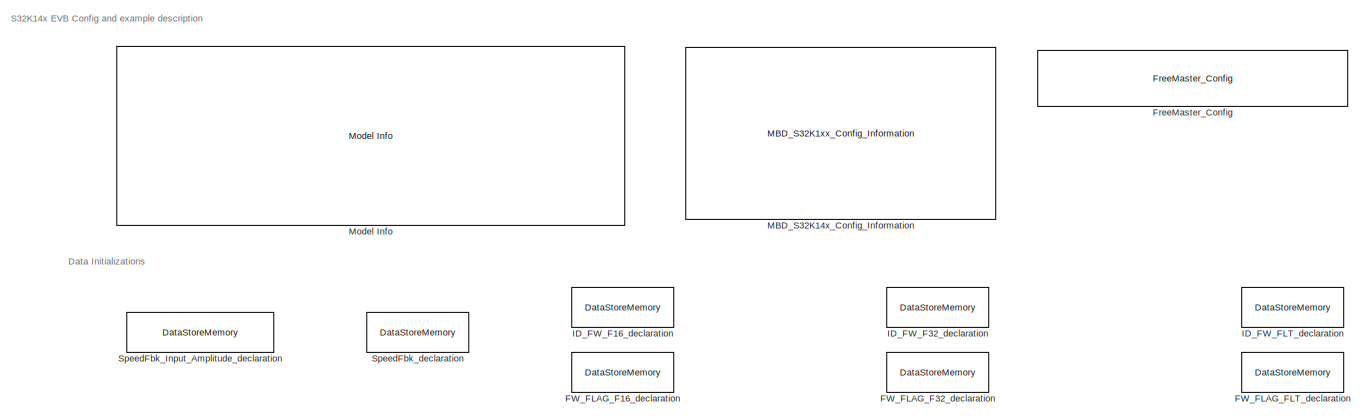
[diagram: root canvas - part 1/6, top center region]
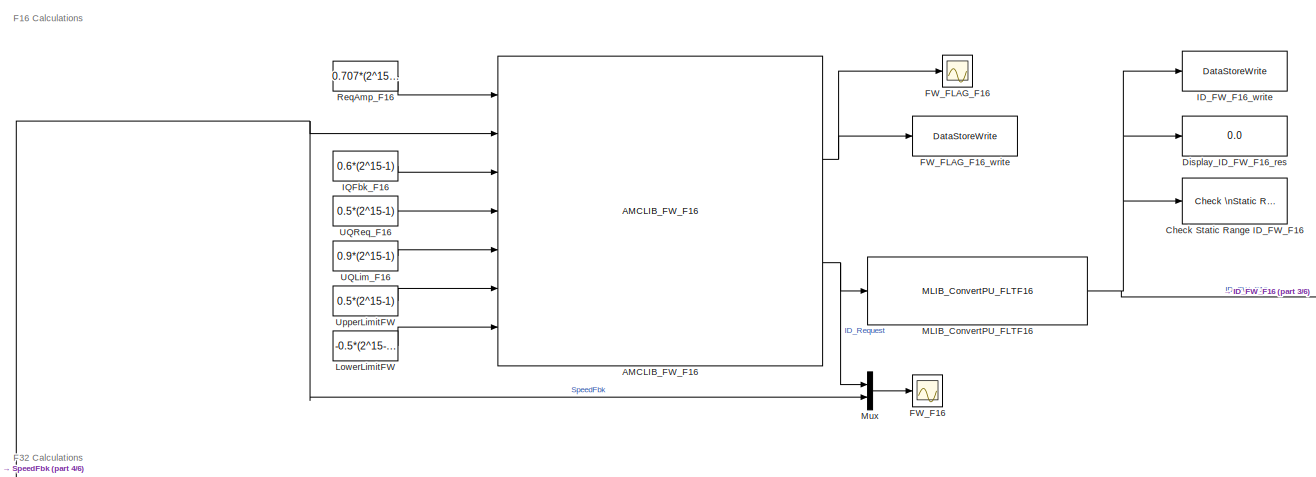
[diagram: root canvas - part 2/6, central region]
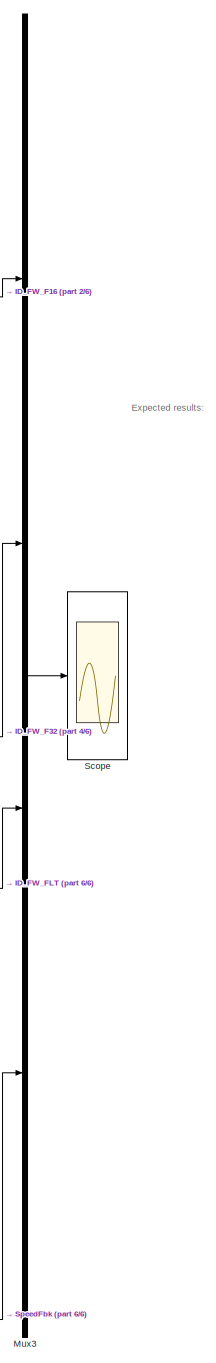
[diagram: root canvas - part 3/6, right side, full height]
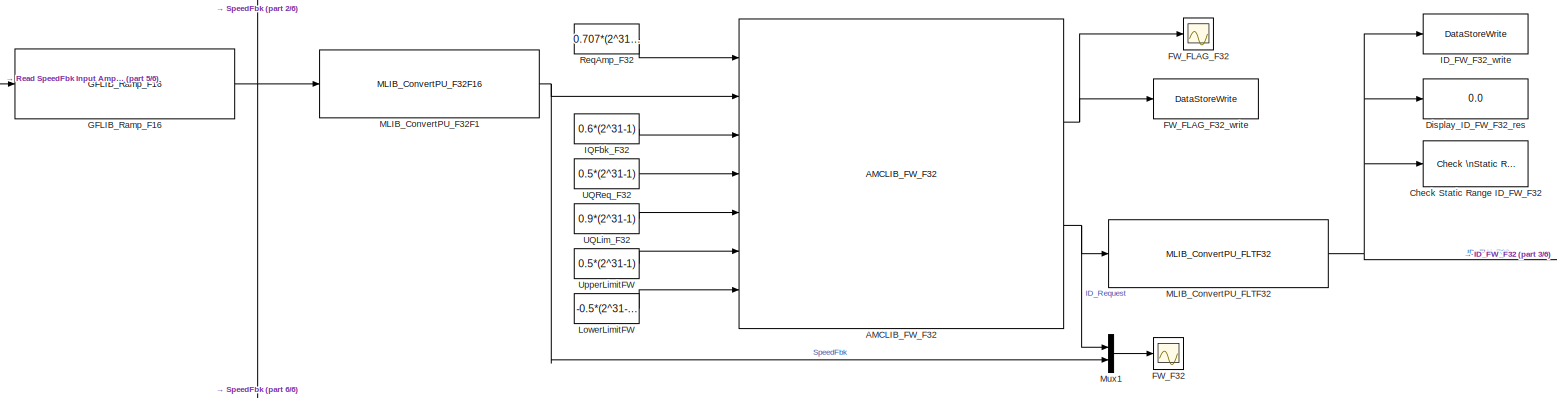
[diagram: root canvas - part 4/6, full width, middle band]
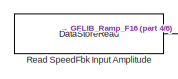
[diagram: root canvas - part 5/6, middle left region]
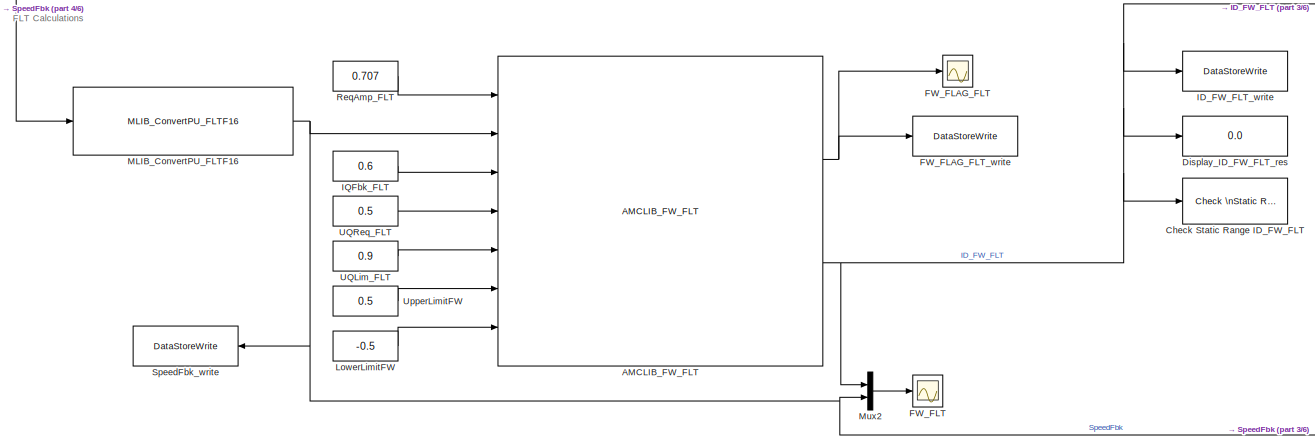
[diagram: root canvas - part 6/6, bottom center region]
MODEL ammclib_amclib_field_weakening_s32k14x
KIND model
CONFIG InitFcn = mbd_s32k_consistency_checks(bdroot(gcs));
BLOCK [Reference] AMCLIB_FW_F16  REF=ammclib_bam_s32k14x/AMCLIB/bam_f16/AMCLIB_FW_F16  (lib defined in mdl_f341c9dd7fd9)
  Ports = [7, 2]
  SID = 703
  SourceBlock = ammclib_bam_s32k14x/AMCLIB/bam_f16/AMCLIB_FW_F16
  SourceType = AMCLIB_FW_F16
  f16IntegGainFW = 0.0001*(2^15-1)
  f16PropGainFW = 0.001*(2^15-1)
  s16IntegGainShiftFW = 0
  s16PropGainShiftFW = 0
  u16NSamplesFW = 3
BLOCK [Reference] AMCLIB_FW_F32  REF=ammclib_bam_s32k14x/AMCLIB/bam_f32/AMCLIB_FW_F32  (lib defined in mdl_f341c9dd7fd9)
  Ports = [7, 2]
  SID = 727
  SourceBlock = ammclib_bam_s32k14x/AMCLIB/bam_f32/AMCLIB_FW_F32
  SourceType = AMCLIB_FW_F32
  f32IntegGainFW = 0.0001*(2^31-1)
  f32PropGainFW = 0.001*(2^31-1)
  s16IntegGainShiftFW = 0
  s16PropGainShiftFW = 0
  u16NSamplesFW = 3
BLOCK [Reference] AMCLIB_FW_FLT  REF=ammclib_bam_s32k14x/AMCLIB/bam_flt/AMCLIB_FW_FLT  (lib defined in mdl_f341c9dd7fd9)
  Ports = [7, 2]
  SID = 745
  SourceBlock = ammclib_bam_s32k14x/AMCLIB/bam_flt/AMCLIB_FW_FLT
  SourceType = AMCLIB_FW_FLT
  fltIntegGainFW = 0.0001
  fltLambdaFW = 0.6
  fltPropGainFW = 0.001
  fltUmaxDivImax = 1
BLOCK [Reference] Check Static Range ID_FW_F16   REF=simulink/Model\nVerification/Check \nStatic Range
  Description = 0 <= u <= 0.707*(2^15-1)
  Ports = [1]
  SID = 585
  SourceBlock = simulink/Model\nVerification/Check \nStatic Range
  SourceProductBaseCode = SL
  SourceProductName = Simulink
  SourceType = Checks_SRange
  enabled = on
  export = off
  icon = graphic
  max = 0.707*(2^15-1)
  max_included = on
  min = 0
  min_included = on
  stopWhenAssertionFail = on
BLOCK [Reference] Check Static Range ID_FW_F32   REF=simulink/Model\nVerification/Check \nStatic Range
  Description = 0 <= u <= 0.707*(2^31-1)
  Ports = [1]
  SID = 711
  SourceBlock = simulink/Model\nVerification/Check \nStatic Range
  SourceProductBaseCode = SL
  SourceProductName = Simulink
  SourceType = Checks_SRange
  enabled = on
  export = off
  icon = graphic
  max = 0.707*(2^31-1)
  max_included = on
  min = 0
  min_included = on
  stopWhenAssertionFail = on
BLOCK [Reference] Check Static Range ID_FW_FLT  REF=simulink/Model\nVerification/Check \nStatic Range
  Description = 0 <= u <= 0.707
  Ports = [1]
  SID = 729
  SourceBlock = simulink/Model\nVerification/Check \nStatic Range
  SourceProductBaseCode = SL
  SourceProductName = Simulink
  SourceType = Checks_SRange
  enabled = on
  export = off
  icon = graphic
  max = 0.707
  max_included = on
  min = 0
  min_included = on
  stopWhenAssertionFail = on
BLOCK [Display] Display_ID_FW_F16_res
  Decimation = 1
  Format = long
  Ports = [1]
  SID = 579
BLOCK [Display] Display_ID_FW_F32_res
  Decimation = 1
  Format = long
  Ports = [1]
  SID = 712
BLOCK [Display] Display_ID_FW_FLT_res
  Decimation = 1
  Format = long
  Ports = [1]
  SID = 730
BLOCK [Scope] FW_F16
  NumInputPorts = 1
  Ports = [1]
  SID = 660
  ScopeSpecificationString = Simulink.scopes.TimeScopeBlockCfg('CurrentConfiguration', extmgr.ConfigurationSet(extmgr.Configuration('Core','General UI',true),extmgr.Configuration('Core','Source UI',true),extmgr.Configuration('Sources','WiredSimulink',true),extmgr.Configuration('Visuals','Time Domain',true,'SerializedDisplays',{struct('MinYLimReal','-2893.375','MaxYLimReal','26060.375','YLabelReal','','MinYLimMag','  0.00000',...<+1403ch>
BLOCK [Scope] FW_F32
  NumInputPorts = 1
  Ports = [1]
  SID = 713
  ScopeSpecificationString = Simulink.scopes.TimeScopeBlockCfg('CurrentConfiguration', extmgr.ConfigurationSet(extmgr.Configuration('Core','General UI',true),extmgr.Configuration('Core','Source UI',true),extmgr.Configuration('Sources','WiredSimulink',true,'DataLoggingVariableName','ScopeData2'),extmgr.Configuration('Visuals','Time Domain',true,'SerializedDisplays',{struct('MinYLimReal','-189636411.125','MaxYLimReal','17080384...<+1482ch>
BLOCK [Scope] FW_FLAG_F16
  NumInputPorts = 1
  Ports = [1]
  SID = 662
  ScopeSpecificationString = Simulink.scopes.TimeScopeBlockCfg('CurrentConfiguration', extmgr.ConfigurationSet(extmgr.Configuration('Core','General UI',true),extmgr.Configuration('Core','Source UI',true),extmgr.Configuration('Sources','WiredSimulink',true,'DataLoggingVariableName','ScopeData1','DataLoggingSaveFormat','Array','DataLoggingDecimation','1','DataLoggingDecimateData',true),extmgr.Configuration('Visuals','Time Domai...<+1453ch>
BLOCK [DataStoreMemory] FW_FLAG_F16_declaration
  DataStoreName = FW_FLAG_F16
  OutDataTypeStr = uint16
  Priority = 3
  ReadBeforeWriteMsg = warning
  SID = 588
  ShowAdditionalParam = off
  WriteAfterReadMsg = warning
  WriteAfterWriteMsg = warning
BLOCK [DataStoreWrite] FW_FLAG_F16_write
  DataStoreName = FW_FLAG_F16
  Ports = [1]
  SID = 659
BLOCK [Scope] FW_FLAG_F32
  NumInputPorts = 1
  Ports = [1]
  SID = 714
  ScopeSpecificationString = Simulink.scopes.TimeScopeBlockCfg('CurrentConfiguration', extmgr.ConfigurationSet(extmgr.Configuration('Core','General UI',true),extmgr.Configuration('Core','Source UI',true),extmgr.Configuration('Sources','WiredSimulink',true,'DataLoggingVariableName','ScopeData3','DataLoggingSaveFormat','Array','DataLoggingDecimation','1','DataLoggingDecimateData',true),extmgr.Configuration('Visuals','Time Domai...<+1453ch>
BLOCK [DataStoreMemory] FW_FLAG_F32_declaration
  DataStoreName = FW_FLAG_F32
  OutDataTypeStr = uint16
  Priority = 3
  ReadBeforeWriteMsg = warning
  SID = 680
  ShowAdditionalParam = off
  WriteAfterReadMsg = warning
  WriteAfterWriteMsg = warning
BLOCK [DataStoreWrite] FW_FLAG_F32_write
  DataStoreName = FW_FLAG_F32
  Ports = [1]
  SID = 715
BLOCK [Scope] FW_FLAG_FLT
  NumInputPorts = 1
  Ports = [1]
  SID = 732
  ScopeSpecificationString = Simulink.scopes.TimeScopeBlockCfg('CurrentConfiguration', extmgr.ConfigurationSet(extmgr.Configuration('Core','General UI',true),extmgr.Configuration('Core','Source UI',true),extmgr.Configuration('Sources','WiredSimulink',true,'DataLoggingVariableName','ScopeData5','DataLoggingSaveFormat','Array','DataLoggingDecimation','1','DataLoggingDecimateData',true),extmgr.Configuration('Visuals','Time Domai...<+1453ch>
BLOCK [DataStoreMemory] FW_FLAG_FLT_declaration
  DataStoreName = FW_FLAG_FLT
  OutDataTypeStr = uint16
  Priority = 3
  ReadBeforeWriteMsg = warning
  SID = 698
  ShowAdditionalParam = off
  WriteAfterReadMsg = warning
  WriteAfterWriteMsg = warning
BLOCK [DataStoreWrite] FW_FLAG_FLT_write
  DataStoreName = FW_FLAG_FLT
  Ports = [1]
  SID = 733
BLOCK [Scope] FW_FLT
  NumInputPorts = 1
  Ports = [1]
  SID = 731
  ScopeSpecificationString = Simulink.scopes.TimeScopeBlockCfg('CurrentConfiguration', extmgr.ConfigurationSet(extmgr.Configuration('Core','General UI',true),extmgr.Configuration('Core','Source UI',true),extmgr.Configuration('Sources','WiredSimulink',true,'DataLoggingVariableName','ScopeData4'),extmgr.Configuration('Visuals','Time Domain',true,'SerializedDisplays',{struct('MinYLimReal','-0.0423','MaxYLimReal','0.38132','YLabe...<+1425ch>
BLOCK [Reference] FreeMaster_Config  REF=mbd_s32k1xx_ec_toolbox/Utility Blocks/FreeMaster_Config
  Ports = []
  SID = 564
  SourceBlock = mbd_s32k1xx_ec_toolbox/Utility Blocks/FreeMaster_Config
  SourceType = fm_s32k_config
  baudrate = 115200
  comm_buffer_size = 255
  comm_buffer_size_auto = on
  comm_rqueue_size = 32
  comm_rqueue_size_default = on
  interface = LPUART1
  isr_prio = 1
  max_rec_vars = 8
  max_scope_vars = 8
  mode = Short Interrupt
  rec_buff_size = 1024
  rec_timebase = 0
  rec_timebase_unit = milliseconds
  rxd = PTC6: [LPUART1_RX | Receive]
  show_adv_opts = on
  txd = PTC7: [LPUART1_TX | Transmit]
  use_recorder = on
  use_scope = on
BLOCK [Reference] GFLIB_Ramp_F16  REF=ammclib_bam_s32k14x/GFLIB/bam_f16/GFLIB_Ramp_F16  (lib defined in mdl_f341c9dd7fd9)
  Ports = [1, 1]
  SID = 704
  SourceBlock = ammclib_bam_s32k14x/GFLIB/bam_f16/GFLIB_Ramp_F16
  SourceType = GFLIB_Ramp
  f16RampDown = 2
  f16RampUp = 2
BLOCK [DataStoreMemory] ID_FW_F16_declaration
  DataStoreName = ID_FW_F16
  OutDataTypeStr = single
  Priority = 2
  ReadBeforeWriteMsg = warning
  SID = 580
  ShowAdditionalParam = off
  WriteAfterReadMsg = warning
  WriteAfterWriteMsg = warning
BLOCK [DataStoreWrite] ID_FW_F16_write
  DataStoreName = ID_FW_F16
  Ports = [1]
  SID = 581
BLOCK [DataStoreMemory] ID_FW_F32_declaration
  DataStoreName = ID_FW_F32
  OutDataTypeStr = single
  Priority = 2
  ReadBeforeWriteMsg = warning
  SID = 679
  ShowAdditionalParam = off
  WriteAfterReadMsg = warning
  WriteAfterWriteMsg = warning
BLOCK [DataStoreWrite] ID_FW_F32_write
  DataStoreName = ID_FW_F32
  Ports = [1]
  SID = 717
BLOCK [DataStoreMemory] ID_FW_FLT_declaration
  DataStoreName = ID_FW_FLT
  OutDataTypeStr = single
  Priority = 2
  ReadBeforeWriteMsg = warning
  SID = 697
  ShowAdditionalParam = off
  WriteAfterReadMsg = warning
  WriteAfterWriteMsg = warning
BLOCK [DataStoreWrite] ID_FW_FLT_write
  DataStoreName = ID_FW_FLT
  Ports = [1]
  SID = 734
BLOCK [Constant] IQFbk_F16
  OutDataTypeStr = Inherit: Inherit via back propagation
  SID = 705
  Value = 0.6*(2^15-1)
BLOCK [Constant] IQFbk_F32
  OutDataTypeStr = Inherit: Inherit via back propagation
  SID = 718
  Value = 0.6*(2^31-1)
BLOCK [Constant] IQFbk_FLT
  OutDataTypeStr = Inherit: Inherit via back propagation
  SID = 735
  Value = 0.6
BLOCK [Constant] LowerLimitFW
  OutDataTypeStr = Inherit: Inherit via back propagation
  SID = 655
  Value = -0.5*(2^15-1)
BLOCK [Constant] LowerLimitFW 
  OutDataTypeStr = Inherit: Inherit via back propagation
  SID = 719
  Value = -0.5*(2^31-1)
BLOCK [Constant] LowerLimitFW  
  OutDataTypeStr = Inherit: Inherit via back propagation
  SID = 736
  Value = -0.5
BLOCK [Reference] MBD_S32K14x_Config_Information  REF=mbd_s32k1xx_ec_toolbox/MBD_S32K1xx_Config_Information
  ADC_PcrCheckEnDis = on
  AMMCLIB_PcrCheckEnDis = on
  CMP_PcrCheckEnDis = on
  CSEc_PcrCheckEnDis = on
  ConfigParams_PcrCheckEnDis = on
  FM_PcrCheckEnDis = on
  FTM_Dual_Edge_Inputs_PcrCheckEnDis = on
  FTM_Hall_Sensor_Inputs_PcrCheckEnDis = on
  FTM_Input_Edge_Inputs_PcrCheckEnDis = on
  FTM_PWM_PcrCheckEnDis = on
  FTM_Quadrature_Inputs_PcrCheckEnDis = on
  FlexCAN_PcrCheckEnDis = on
  FlexIO_PcrCheckEnDis = on
  GPIO_InputPcrCheckEnDis = on
  GPIO_OutputPcrCheckEnDis = on
  LIN_PcrCheckEnDis = on
  LPI2C_PcrCheckEnDis = on
  LPSPI_PcrCheckEnDis = on
  LPTMR_PcrCheckEnDis = on
  LPUART_PcrCheckEnDis = on
  ModelRef_PcrCheckEnDis = on
  PDB0_PcrCheckEnDis = on
  PIT_PcrCheckEnDis = on
  Ports = []
  Priority = 0
  Profile_PcrCheckEnDis = on
  RTC_PcrCheckEnDis = on
  SBC_PcrCheckEnDis = on
  SID = 1
  SourceBlock = mbd_s32k1xx_ec_toolbox/MBD_S32K1xx_Config_Information
  SourceType = MBDTBX_EC_S32K
  WDOG_PcrCheckEnDis = on
  config_params = []
  disp_str = Target : S32K142-16KB_SRAM\nPackage : 100-pin\nSystem clock : 80 MHz\nXTAL clock : External 8 MHz\nCompiler : GCC\nTarget Type : FLASH\nDownload Code after build : (OpenSDA: E)\nStep Tick Interrupt Priority : 15
  ds_import_enable = on
  eDMA_PcrCheckEnDis = on
  gcc_target_assemble_opts = -mcpu=cortex-m4 -mthumb -mfloat-abi=hard -mfpu=fpv4-sp-d16 -g
  gcc_target_compile_opts = -mcpu=cortex-m4 -mthumb -mfloat-abi=hard -mfpu=fpv4-sp-d16 -O1 -g -gstrict-dwarf
  gcc_target_default_lcf = on
  gcc_target_link_opts = -mcpu=cortex-m4 -mthumb -mfloat-abi=hard -mfpu=fpv4-sp-d16
  gcc_target_user_lcf = S32K144_64_flash.ld
  ghs_target_assemble_opts = -cpu=cortexm4f -fpu=vfpv4_d16
  ghs_target_compile_opts = -cpu=cortexm4f -thumb -DARM_MATH_CM4 -fpu=vfpv4_d16 -fsingle -Ogeneral -Wundef -Wimplicit-int -Wshadow -Wtrigraphs --no_commons --gnu_asm -gnu99 -gdwarf-2 -G
  ghs_target_default_lcf = off
  ghs_target_link_opts = -cpu=cortexm4f -thumb -fpu=vfpv4_d16
  ghs_target_user_lcf = S32K144_64_flash.ld
  iar_target_assemble_opts = --cpu Cortex-M4F --thumb --fpu VFPv4_sp
  iar_target_compile_opts = --cpu=Cortex-M4F --thumb --fpu=VFPv4_sp -Ol -e --debug --dlib_config normal
  iar_target_default_lcf = off
  iar_target_link_opts = --no_exceptions --vfe --inline
  iar_target_user_lcf = S32K144_64_flash.icf
  mbdt_ver = 0
  mcu_steptick_prio = 15
  mcu_steptick_timer = LPIT Channel 0
  mcu_system_clock_freq = 80
  mcu_target_name = S32K144
  mcu_target_package = 100-LQFP
  mcu_target_sram_size = 64KB
  mcu_xtal_freq = External 8
  pil_download_enable = off
  pil_download_rate = 57600
  pil_opensda_drive = Custom
  pil_opensda_drive_custom = D
  pil_uart_instance = 0
  pil_uart_rx = PTA2: [LPUART0_RX | Receive]
  pil_uart_tx = PTA3: [LPUART0_TX | Transmit]
  rbl_com_port = Custom
  rbl_com_port_custom = COM1
  rbl_download_enable = on
  rbl_download_interface = OpenSDA
  rbl_restart_request = off
  rbl_start_delay = 5000000
  target_compiler = GCC
  target_memory = FLASH
BLOCK [Reference] MLIB_ConvertPU_F32F1  REF=ammclib_bam_s32k14x/MLIB/bam_f32/MLIB_ConvertPU_F32F16  (lib defined in mdl_f341c9dd7fd9)
  Ports = [1, 1]
  SID = 708
  SourceBlock = ammclib_bam_s32k14x/MLIB/bam_f32/MLIB_ConvertPU_F32F16
  SourceType = MLIB_ConvertPU_F32
BLOCK [Reference] MLIB_ConvertPU_FLTF16  REF=ammclib_bam_s32k14x/MLIB/bam_flt/MLIB_ConvertPU_FLTF16  (lib defined in mdl_f341c9dd7fd9)
  Ports = [1, 1]
  SID = 746
  SourceBlock = ammclib_bam_s32k14x/MLIB/bam_flt/MLIB_ConvertPU_FLTF16
  SourceType = MLIB_ConvertPU_FLT
BLOCK [Reference] MLIB_ConvertPU_FLTF16     REF=ammclib_bam_s32k14x/MLIB/bam_flt/MLIB_ConvertPU_FLTF16  (lib defined in mdl_f341c9dd7fd9)
  Ports = [1, 1]
  SID = 656
  SourceBlock = ammclib_bam_s32k14x/MLIB/bam_flt/MLIB_ConvertPU_FLTF16
  SourceType = MLIB_ConvertPU_FLT
BLOCK [Reference] MLIB_ConvertPU_FLTF32  REF=ammclib_bam_s32k14x/MLIB/bam_flt/MLIB_ConvertPU_FLTF32  (lib defined in mdl_f341c9dd7fd9)
  Ports = [1, 1]
  SID = 709
  SourceBlock = ammclib_bam_s32k14x/MLIB/bam_flt/MLIB_ConvertPU_FLTF32
  SourceType = MLIB_ConvertPU_FLT
BLOCK [Reference] Model Info  REF=simulink/Model-Wide\nUtilities/Model Info
  DisplayStringWithTags = Model Name: %<ModelName>\n\nDescription: %<Description>
  Frame = off
  HorizontalTextAlignment = Left
  LeftAlignmentValue = 0.02
  MaskDisplayString = Model Name: ammclib_amclib_field_weakening_s32k14x\\n\\nDescription: This model tests the AMMCLIB AMCLIB Field Weakening blocks\\n\\nValidation:\\n- Run the model in Simulation and compare the Inputs vs Outputs results.\\n- Open Freemaster (ammclib_amclib_field_weakening_s32k14x.pmp) and compare the HW results against the Simulated ones
  Ports = []
  SID = 524
  SourceBlock = simulink/Model-Wide\nUtilities/Model Info
  SourceProductBaseCode = SL
  SourceProductName = Simulink
  SourceType = CMBlock
BLOCK [Mux] Mux
  DisplayOption = bar
  Inputs = 2
  Ports = [2, 1]
  SID = 661
BLOCK [Mux] Mux1
  DisplayOption = bar
  Inputs = 2
  Ports = [2, 1]
  SID = 721
BLOCK [Mux] Mux2
  DisplayOption = bar
  Inputs = 2
  Ports = [2, 1]
  SID = 739
BLOCK [Mux] Mux3
  DisplayOption = bar
  Ports = [4, 1]
  SID = 699
BLOCK [DataStoreRead] Read SpeedFbk Input Amplitude
  DataStoreName = SpeedFbk_Input_Amplitude
  Ports = [0, 1]
  SID = 651
BLOCK [Constant] ReqAmp_F16
  OutDataTypeStr = Inherit: Inherit via back propagation
  SID = 643
  Value = 0.707*(2^15-1)
BLOCK [Constant] ReqAmp_F32
  OutDataTypeStr = Inherit: Inherit via back propagation
  SID = 722
  Value = 0.707*(2^31-1)
BLOCK [Constant] ReqAmp_FLT
  OutDataTypeStr = Inherit: Inherit via back propagation
  SID = 740
  Value = 0.707
BLOCK [Scope] Scope
  NumInputPorts = 1
  Ports = [1]
  SID = 701
  ScopeSpecificationString = Simulink.scopes.TimeScopeBlockCfg('CurrentConfiguration', extmgr.ConfigurationSet(extmgr.Configuration('Core','General UI',true),extmgr.Configuration('Core','Source UI',true),extmgr.Configuration('Sources','WiredSimulink',true,'DataLoggingVariableName','ScopeData6'),extmgr.Configuration('Visuals','Time Domain',true,'SerializedDisplays',{struct('MinYLimReal','-0.08831','MaxYLimReal','0.79537','YLab...<+1789ch>
BLOCK [DataStoreMemory] SpeedFbk_Input_Amplitude_declaration
  DataStoreName = SpeedFbk_Input_Amplitude
  InitialValue = 0.25*(2^15-1)
  OutDataTypeStr = int16
  OutMax = 32767
  OutMin = -32768
  Priority = 1
  SID = 648
  ShowAdditionalParam = off
  WriteAfterReadMsg = warning
  WriteAfterWriteMsg = warning
BLOCK [DataStoreMemory] SpeedFbk_declaration
  DataStoreName = SpeedFbk
  OutDataTypeStr = single
  OutMax = 1
  OutMin = -1
  Priority = 1
  SID = 649
  ShowAdditionalParam = off
  WriteAfterReadMsg = warning
  WriteAfterWriteMsg = warning
BLOCK [DataStoreWrite] SpeedFbk_write
  DataStoreName = SpeedFbk
  Ports = [1]
  SID = 747
BLOCK [Constant] UQLim_F16
  OutDataTypeStr = Inherit: Inherit via back propagation
  SID = 706
  Value = 0.9*(2^15-1)
BLOCK [Constant] UQLim_F32
  OutDataTypeStr = Inherit: Inherit via back propagation
  SID = 723
  Value = 0.9*(2^31-1)
BLOCK [Constant] UQLim_FLT
  OutDataTypeStr = Inherit: Inherit via back propagation
  SID = 741
  Value = 0.9
BLOCK [Constant] UQReq_F16
  OutDataTypeStr = Inherit: Inherit via back propagation
  SID = 707
  Value = 0.5*(2^15-1)
BLOCK [Constant] UQReq_F32
  OutDataTypeStr = Inherit: Inherit via back propagation
  SID = 724
  Value = 0.5*(2^31-1)
BLOCK [Constant] UQReq_FLT
  OutDataTypeStr = Inherit: Inherit via back propagation
  SID = 742
  Value = 0.5
BLOCK [Constant] UpperLimitFW
  OutDataTypeStr = Inherit: Inherit via back propagation
  SID = 644
  Value = 0.5*(2^15-1)
BLOCK [Constant] UpperLimitFW 
  OutDataTypeStr = Inherit: Inherit via back propagation
  SID = 725
  Value = 0.5*(2^31-1)
BLOCK [Constant] UpperLimitFW   
  OutDataTypeStr = Inherit: Inherit via back propagation
  SID = 743
  Value = 0.5
ANNOTATION (root): \n \n Expected results: \n
ANNOTATION (root): Data Initializations
ANNOTATION (root): F16 Calculations
ANNOTATION (root): F32 Calculations
ANNOTATION (root): FLT Calculations
ANNOTATION (root): S32K14x EVB Config and example description
NET AMCLIB_FW_F16:1 -> FW_FLAG_F16:1, FW_FLAG_F16_write:1
NET AMCLIB_FW_F16:2 -> MLIB_ConvertPU_FLTF16   :1, Mux:1
NET AMCLIB_FW_F32:1 -> FW_FLAG_F32:1, FW_FLAG_F32_write:1
NET AMCLIB_FW_F32:2 -> MLIB_ConvertPU_FLTF32:1, Mux1:1
NET AMCLIB_FW_FLT:1 -> FW_FLAG_FLT:1, FW_FLAG_FLT_write:1
NET AMCLIB_FW_FLT:2 -> Check Static Range ID_FW_FLT:1, Display_ID_FW_FLT_res:1, ID_FW_FLT_write:1, Mux2:1, Mux3:3
NET GFLIB_Ramp_F16:1 -> AMCLIB_FW_F16:2, MLIB_ConvertPU_F32F1:1, MLIB_ConvertPU_FLTF16:1, Mux:2
LINE IQFbk_F16:1 -> AMCLIB_FW_F16:3
LINE IQFbk_F32:1 -> AMCLIB_FW_F32:3
LINE IQFbk_FLT:1 -> AMCLIB_FW_FLT:3
LINE LowerLimitFW  :1 -> AMCLIB_FW_FLT:7
LINE LowerLimitFW :1 -> AMCLIB_FW_F32:7
LINE LowerLimitFW:1 -> AMCLIB_FW_F16:7
NET MLIB_ConvertPU_F32F1:1 -> AMCLIB_FW_F32:2, Mux1:2
NET MLIB_ConvertPU_FLTF16   :1 -> Check Static Range ID_FW_F16 :1, Display_ID_FW_F16_res:1, ID_FW_F16_write:1, Mux3:1
NET MLIB_ConvertPU_FLTF16:1 -> AMCLIB_FW_FLT:2, Mux2:2, Mux3:4, SpeedFbk_write:1
NET MLIB_ConvertPU_FLTF32:1 -> Check Static Range ID_FW_F32 :1, Display_ID_FW_F32_res:1, ID_FW_F32_write:1, Mux3:2
LINE Mux1:1 -> FW_F32:1
LINE Mux2:1 -> FW_FLT:1
LINE Mux3:1 -> Scope:1
LINE Mux:1 -> FW_F16:1
LINE Read SpeedFbk Input Amplitude:1 -> GFLIB_Ramp_F16:1
LINE ReqAmp_F16:1 -> AMCLIB_FW_F16:1
LINE ReqAmp_F32:1 -> AMCLIB_FW_F32:1
LINE ReqAmp_FLT:1 -> AMCLIB_FW_FLT:1
LINE UQLim_F16:1 -> AMCLIB_FW_F16:5
LINE UQLim_F32:1 -> AMCLIB_FW_F32:5
LINE UQLim_FLT:1 -> AMCLIB_FW_FLT:5
LINE UQReq_F16:1 -> AMCLIB_FW_F16:4
LINE UQReq_F32:1 -> AMCLIB_FW_F32:4
LINE UQReq_FLT:1 -> AMCLIB_FW_FLT:4
LINE UpperLimitFW   :1 -> AMCLIB_FW_FLT:6
LINE UpperLimitFW :1 -> AMCLIB_FW_F32:6
LINE UpperLimitFW:1 -> AMCLIB_FW_F16:6
note: NET lines group one-source signal fan-out (src -> all destinations, sorted); 1:1 wires keep LINE
